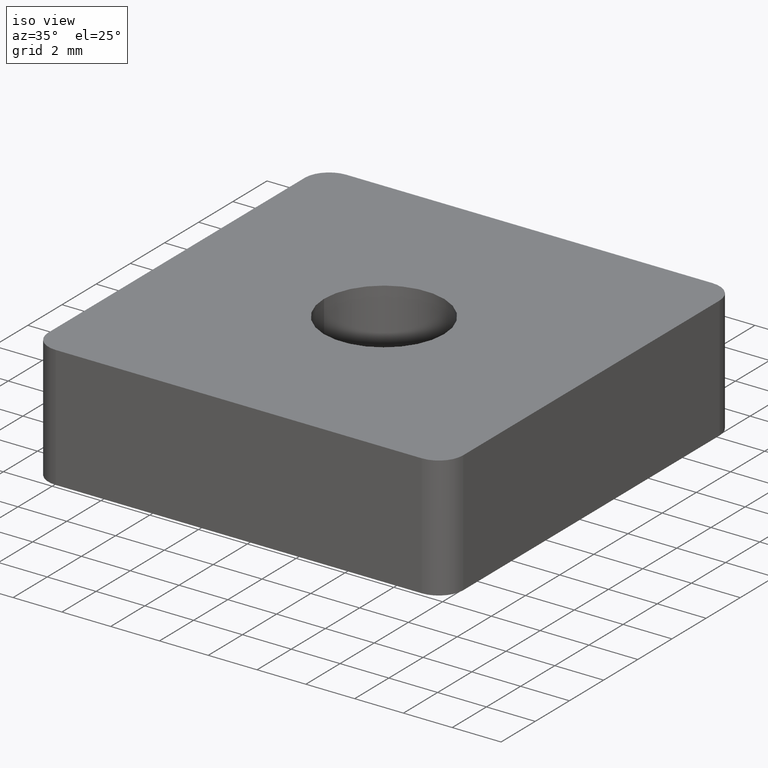
[diagram: clean part render]
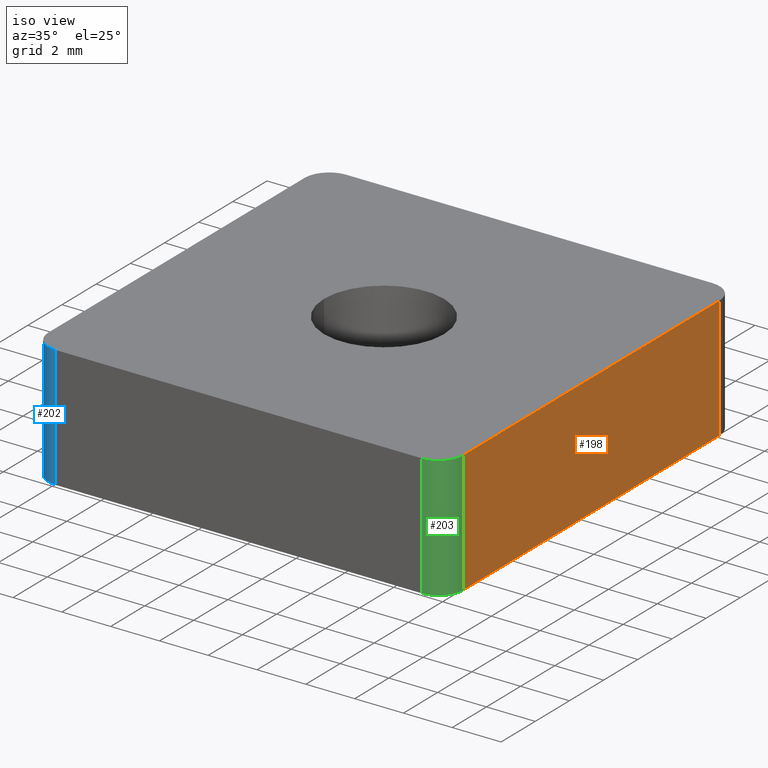
[diagram: same view with three faces highlighted in distinct colors, each labeled with its STEP entity id]
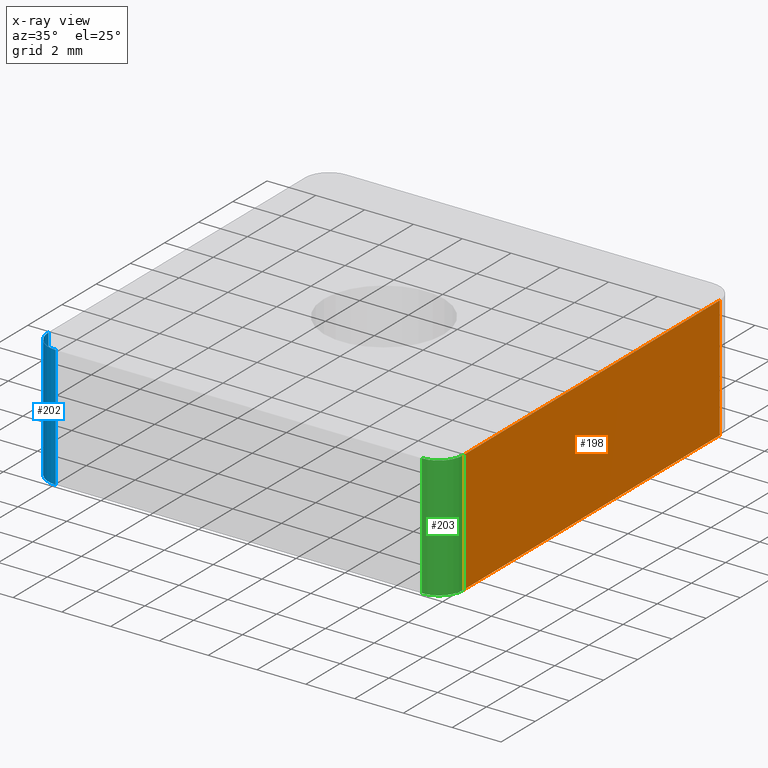
[diagram: x-ray of the same camera — body ghosted, the three highlighted faces saturated]
A machine part, iso view with three faces highlighted in distinct colors.
The next image is the same camera in x-ray (body ghosted, the three faces saturated) — at least one of them is partly hidden behind the body in this view.
Their STEP definitions:

[orange] entity #198 — the highlighted planar face has unit normal (-1, 0, 0).
#19=PLANE('',#234);
#26=FACE_OUTER_BOUND('',#37,.T.);
#37=EDGE_LOOP('',(#148,#149,#150,#151));
#56=LINE('',#339,#73);
#57=LINE('',#341,#74);
#58=LINE('',#343,#75);
#59=LINE('',#344,#76);
#73=VECTOR('',#273,15.);
#74=VECTOR('',#274,5.);
#75=VECTOR('',#275,15.);
#76=VECTOR('',#276,5.);
#101=VERTEX_POINT('',#337);
#102=VERTEX_POINT('',#338);
#103=VERTEX_POINT('',#340);
#104=VERTEX_POINT('',#342);
#120=EDGE_CURVE('',#101,#102,#56,.T.);
#121=EDGE_CURVE('',#102,#103,#57,.T.);
#122=EDGE_CURVE('',#104,#103,#58,.T.);
#123=EDGE_CURVE('',#104,#101,#59,.T.);
#148=ORIENTED_EDGE('',*,*,#120,.T.);
#149=ORIENTED_EDGE('',*,*,#121,.T.);
#150=ORIENTED_EDGE('',*,*,#122,.F.);
#151=ORIENTED_EDGE('',*,*,#123,.T.);
#198=ADVANCED_FACE('',(#26),#19,.F.);
#234=AXIS2_PLACEMENT_3D('',#336,#271,#272);
#271=DIRECTION('center_axis',(-1.,0.,0.));
#272=DIRECTION('ref_axis',(0.,0.,1.));
#273=DIRECTION('',(0.,1.,0.));
#274=DIRECTION('',(0.,0.,1.));
#275=DIRECTION('',(0.,1.,0.));
#276=DIRECTION('',(0.,0.,-1.));
#336=CARTESIAN_POINT('Origin',(8.49999999999999,-8.24999999999998,-5.25));
#337=CARTESIAN_POINT('',(8.49999999999999,-7.49999999999998,-5.));
#338=CARTESIAN_POINT('',(8.49999999999999,7.50000000000001,-5.));
#339=CARTESIAN_POINT('',(8.49999999999999,-7.49999999999998,-5.));
#340=CARTESIAN_POINT('',(8.49999999999999,7.50000000000001,0.));
#341=CARTESIAN_POINT('',(8.49999999999999,7.50000000000001,-5.));
#342=CARTESIAN_POINT('',(8.49999999999999,-7.49999999999998,0.));
#343=CARTESIAN_POINT('',(8.49999999999999,-7.49999999999998,0.));
#344=CARTESIAN_POINT('',(8.49999999999999,-7.49999999999998,0.));

[blue] entity #202 — the highlighted cylindrical surface (edge-blend (fillet) strip) has radius 1 mm, axis along (0, 0, -1).
#30=FACE_OUTER_BOUND('',#43,.T.);
#43=EDGE_LOOP('',(#174,#175,#176,#177));
#51=LINE('',#326,#68);
#55=LINE('',#335,#72);
#68=VECTOR('',#264,5.);
#72=VECTOR('',#270,5.);
#85=CIRCLE('',#239,1.);
#89=CIRCLE('',#244,1.);
#94=VERTEX_POINT('',#320);
#96=VERTEX_POINT('',#324);
#97=VERTEX_POINT('',#328);
#100=VERTEX_POINT('',#333);
#115=EDGE_CURVE('',#96,#94,#51,.T.);
#119=EDGE_CURVE('',#100,#97,#55,.T.);
#130=EDGE_CURVE('',#94,#100,#85,.T.);
#134=EDGE_CURVE('',#97,#96,#89,.T.);
#174=ORIENTED_EDGE('',*,*,#130,.F.);
#175=ORIENTED_EDGE('',*,*,#115,.F.);
#176=ORIENTED_EDGE('',*,*,#134,.F.);
#177=ORIENTED_EDGE('',*,*,#119,.F.);
#191=CYLINDRICAL_SURFACE('',#246,1.);
#202=ADVANCED_FACE('',(#30),#191,.T.);
#239=AXIS2_PLACEMENT_3D('',#357,#289,#290);
#244=AXIS2_PLACEMENT_3D('',#362,#299,#300);
#246=AXIS2_PLACEMENT_3D('',#364,#303,#304);
#264=DIRECTION('',(0.,0.,1.));
#270=DIRECTION('',(0.,0.,-1.));
#289=DIRECTION('center_axis',(0.,0.,1.));
#290=DIRECTION('ref_axis',(1.,0.,0.));
#299=DIRECTION('center_axis',(0.,0.,-1.));
#300=DIRECTION('ref_axis',(1.,0.,0.));
#303=DIRECTION('center_axis',(0.,0.,-1.));
#304=DIRECTION('ref_axis',(-0.707106781186547,-0.707106781186548,0.));
#320=CARTESIAN_POINT('',(-8.5,-7.49999999999998,0.));
#324=CARTESIAN_POINT('',(-8.5,-7.49999999999998,-5.));
#326=CARTESIAN_POINT('',(-8.5,-7.49999999999998,-5.));
#328=CARTESIAN_POINT('',(-7.5,-8.5,-5.));
#333=CARTESIAN_POINT('',(-7.5,-8.5,0.));
#335=CARTESIAN_POINT('',(-7.5,-8.5,0.));
#357=CARTESIAN_POINT('Origin',(-7.5,-7.49999999999998,0.));
#362=CARTESIAN_POINT('Origin',(-7.5,-7.49999999999998,-5.));
#364=CARTESIAN_POINT('Origin',(-7.49999999999999,-7.49999999999997,1.E-8));

[green] entity #203 — the highlighted cylindrical surface (edge-blend (fillet) strip) has radius 1 mm, axis along (0, 0, -1).
#31=FACE_OUTER_BOUND('',#44,.T.);
#44=EDGE_LOOP('',(#178,#179,#180,#181));
#53=LINE('',#332,#70);
#59=LINE('',#344,#76);
#70=VECTOR('',#268,5.);
#76=VECTOR('',#276,5.);
#86=CIRCLE('',#240,1.);
#88=CIRCLE('',#243,1.);
#98=VERTEX_POINT('',#329);
#99=VERTEX_POINT('',#331);
#101=VERTEX_POINT('',#337);
#104=VERTEX_POINT('',#342);
#117=EDGE_CURVE('',#98,#99,#53,.T.);
#123=EDGE_CURVE('',#104,#101,#59,.T.);
#131=EDGE_CURVE('',#99,#104,#86,.T.);
#133=EDGE_CURVE('',#101,#98,#88,.T.);
#178=ORIENTED_EDGE('',*,*,#131,.F.);
#179=ORIENTED_EDGE('',*,*,#117,.F.);
#180=ORIENTED_EDGE('',*,*,#133,.F.);
#181=ORIENTED_EDGE('',*,*,#123,.F.);
#192=CYLINDRICAL_SURFACE('',#247,1.);
#203=ADVANCED_FACE('',(#31),#192,.T.);
#240=AXIS2_PLACEMENT_3D('',#358,#291,#292);
#243=AXIS2_PLACEMENT_3D('',#361,#297,#298);
#247=AXIS2_PLACEMENT_3D('',#365,#305,#306);
#268=DIRECTION('',(0.,0.,1.));
#276=DIRECTION('',(0.,0.,-1.));
#291=DIRECTION('center_axis',(0.,0.,1.));
#292=DIRECTION('ref_axis',(1.,0.,0.));
#297=DIRECTION('center_axis',(0.,0.,-1.));
#298=DIRECTION('ref_axis',(1.,0.,0.));
#305=DIRECTION('center_axis',(0.,0.,-1.));
#306=DIRECTION('ref_axis',(-1.,0.,0.));
#329=CARTESIAN_POINT('',(7.49999999999999,-8.5,-5.));
#331=CARTESIAN_POINT('',(7.49999999999999,-8.5,0.));
#332=CARTESIAN_POINT('',(7.49999999999999,-8.5,-5.));
#337=CARTESIAN_POINT('',(8.49999999999999,-7.49999999999998,-5.));
#342=CARTESIAN_POINT('',(8.49999999999999,-7.49999999999998,0.));
#344=CARTESIAN_POINT('',(8.49999999999999,-7.49999999999998,0.));
#358=CARTESIAN_POINT('Origin',(7.49999999999999,-7.49999999999998,0.));
#361=CARTESIAN_POINT('Origin',(7.49999999999999,-7.49999999999998,-5.));
#365=CARTESIAN_POINT('Origin',(7.49999999999999,-7.49999999999998,1.E-8));